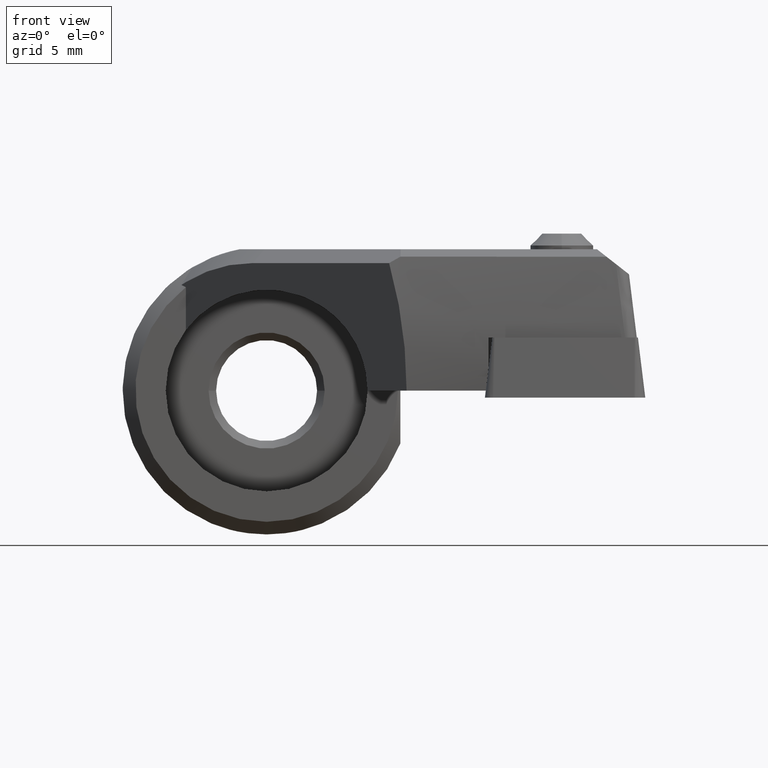
[diagram: clean part render]
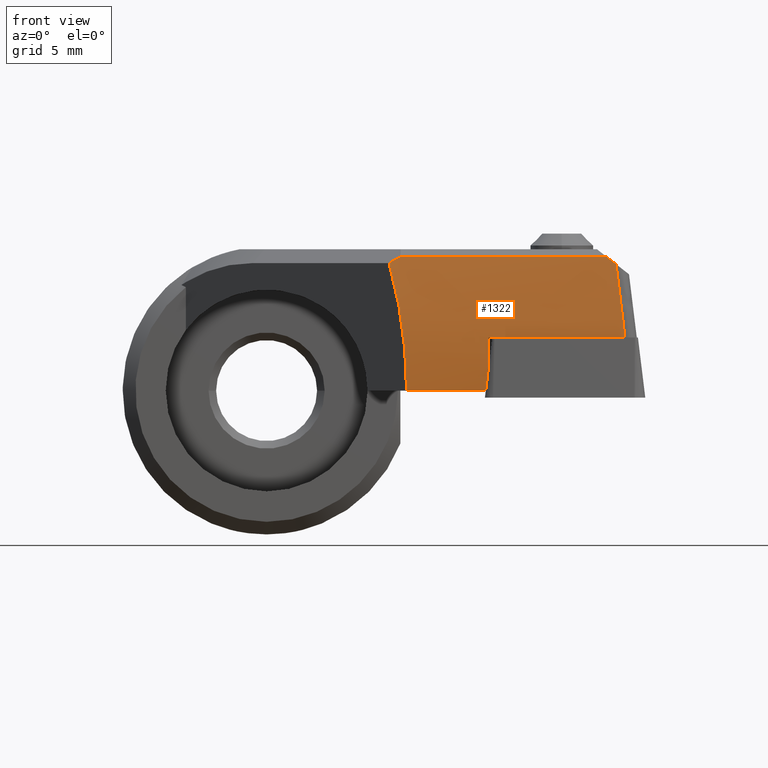
[diagram: same view with one face highlighted and labeled with its STEP entity id]
A machine part, front view. The second image highlights one B-rep face of the part: STEP entity #1322.
In plain terms, the highlighted conical surface has half-angle 10 deg.
Its self-contained STEP definition (entity closure, byte-faithful):
#620=EDGE_CURVE('NONE',#656,#698,#1763,.T.);
#656=VERTEX_POINT('NONE',#1801);
#696=EDGE_CURVE('NONE',#806,#656,#1844,.T.);
#698=VERTEX_POINT('NONE',#1846);
#750=EDGE_CURVE('NONE',#890,#1124,#1902,.F.);
#786=VERTEX_POINT('NONE',#1939);
#806=VERTEX_POINT('NONE',#1960);
#830=EDGE_CURVE('NONE',#698,#890,#1988,.F.);
#890=VERTEX_POINT('NONE',#2056);
#1012=VERTEX_POINT('NONE',#2196);
#1046=VERTEX_POINT('NONE',#2231);
#1124=VERTEX_POINT('NONE',#2318);
#1230=EDGE_CURVE('NONE',#1012,#806,#2435,.T.);
#1268=EDGE_CURVE('NONE',#786,#1012,#2479,.T.);
#1304=EDGE_CURVE('NONE',#1046,#1624,#2517,.T.);
#1322=ADVANCED_FACE('NONE',(#2537),#2538,.T.);
#1624=VERTEX_POINT('NONE',#2871);
#1668=EDGE_CURVE('NONE',#1046,#786,#2918,.T.);
#1690=EDGE_CURVE('NONE',#1624,#1124,#2941,.T.);
#1763=B_SPLINE_CURVE_WITH_KNOTS('',3,(#3023,#3024,#3025,#3026,#3027,#3028,#3029,#3030,#3031,#3032,#3033,#3034),.UNSPECIFIED.,.F.,.F.,(4,2,2,2,2,4),(-9.78587928076607,-8.71451590367417,-7.64335438587341,-5.50123658445705,-1.21867820815756,-0.0),.UNSPECIFIED.);
#1801=CARTESIAN_POINT('',(13.4710769397371,-15.1552312710952,5.29970917868589));
#1844=ELLIPSE('',#3140,43.3681870752418,26.0112476069064);
#1846=CARTESIAN_POINT('',(5.30483348837496,-13.6750876793138,5.30737830274481));
#1902=ELLIPSE('',#3233,27.3468470229419,19.0341598682726);
#1939=CARTESIAN_POINT('',(8.78444401779594,-14.8229285860232,2.09999999999999));
#1960=CARTESIAN_POINT('',(13.8455924612021,-15.2866610355903,5.00710560289485));
#1988=ELLIPSE('',#3370,42.911373078917,18.3650320950065);
#2056=CARTESIAN_POINT('',(4.85349083969277,-13.6534908396929,5.05112553989447));
#2196=CARTESIAN_POINT('',(14.1967215406076,-15.7809990806224,2.09999999999999));
#2231=CARTESIAN_POINT('',(8.78444401779594,-14.9003092707261,0.900000000000121));
#2318=CARTESIAN_POINT('',(5.5468006574716,-14.3468006574717,1.23606387923872E-015));
#2435=B_SPLINE_CURVE_WITH_KNOTS('',3,(#4469,#4470,#4471,#4472,#4473,#4474,#4475),.UNSPECIFIED.,.F.,.F.,(4,3,4),(0.0,0.83335209628488,1.0),.UNSPECIFIED.);
#2479=(B_SPLINE_CURVE(2,(#4530,#4531,#4532),.UNSPECIFIED.,.F.,.F.)B_SPLINE_CURVE_WITH_KNOTS((3,3),(1.31546737846065,6.8112370940866),.UNSPECIFIED.)RATIONAL_B_SPLINE_CURVE((1.00011915251355,1.00031952454388,1.0001144310414))BOUNDED_CURVE()REPRESENTATION_ITEM('')GEOMETRIC_REPRESENTATION_ITEM()CURVE());
#2517=ELLIPSE('',#4587,23.4598143108801,23.3043069477188);
#2537=FACE_OUTER_BOUND('',#4614,.T.);
#2538=CONICAL_SURFACE('',#4615,25.2952896591174,0.174532925199437);
#2871=CARTESIAN_POINT('',(8.68190197032446,-14.8996036061821,1.33226762955019E-015));
#2918=CIRCLE('',#5202,23.3176845358085);
#2941=LINE('',#5236,#5237);
#3023=CARTESIAN_POINT('',(13.5596428564691,-15.1712506069513,5.29965351986083));
#3024=CARTESIAN_POINT('',(13.2522088725556,-15.1156452251892,5.29984570459118));
#3025=CARTESIAN_POINT('',(12.9455531072492,-15.0601692872093,5.30004442277486));
#3026=CARTESIAN_POINT('',(12.331381821018,-14.9490382058228,5.30045896000161));
#3027=CARTESIAN_POINT('',(12.024299361683,-14.8934614002544,5.30067447997445));
#3028=CARTESIAN_POINT('',(11.1031981873349,-14.7267203378501,5.30134925154841));
#3029=CARTESIAN_POINT('',(10.4889415171668,-14.6154759049802,5.30183699115158));
#3030=CARTESIAN_POINT('',(8.64729400520403,-14.281784192749,5.30344137507724));
#3031=CARTESIAN_POINT('',(7.41806844227278,-14.0588429133266,5.30470167653562));
#3032=CARTESIAN_POINT('',(5.84100951235993,-13.7724886370193,5.30666356007647));
#3033=CARTESIAN_POINT('',(5.53738244006219,-13.7173421700916,5.30705897636259));
#3034=CARTESIAN_POINT('',(5.13770054469244,-13.6447219060113,5.30760597474021));
#3140=AXIS2_PLACEMENT_3D('',#5384,#5385,#5386);
#3233=AXIS2_PLACEMENT_3D('',#5442,#5443,#5444);
#3370=AXIS2_PLACEMENT_3D('',#5526,#5527,#5528);
#4469=CARTESIAN_POINT('',(14.1967215406076,-15.7809990806224,2.09999999999999));
#4470=CARTESIAN_POINT('',(14.0983071906151,-15.69282230454,2.91476557632636));
#4471=CARTESIAN_POINT('',(14.0004267892357,-15.5634493136465,3.72512482793417));
#4472=CARTESIAN_POINT('',(13.9035670698982,-15.3934764976652,4.52709323065743));
#4473=CARTESIAN_POINT('',(13.8841977429906,-15.3594865268016,4.6874652435862));
#4474=CARTESIAN_POINT('',(13.8648743783739,-15.323883933622,4.84745774060068));
#4475=CARTESIAN_POINT('',(13.8455924612021,-15.2866610355903,5.00710560289486));
#4530=CARTESIAN_POINT('',(8.78444401779563,-14.8229285860232,2.09999999999999));
#4531=CARTESIAN_POINT('',(11.4358895286179,-15.2923575835638,2.09999999999999));
#4532=CARTESIAN_POINT('',(14.1967215406073,-15.7809990806213,2.09999999999999));
#4587=AXIS2_PLACEMENT_3D('',#6208,#6209,#6210);
#4614=EDGE_LOOP('',(#6235,#6236,#6237,#6238,#6239,#6240,#6241,#6242,#6243));
#4615=AXIS2_PLACEMENT_3D('',#6244,#6245,#6246);
#5202=AXIS2_PLACEMENT_3D('',#6673,#6674,#6675);
#5236=CARTESIAN_POINT('',(20.0,-16.8952896591174,-7.23763568590435E-016));
#5237=VECTOR('',#6699,1.0);
#5384=CARTESIAN_POINT('',(27.9672003239699,8.40000000000001,-6.02590364342413));
#5385=DIRECTION('',(-0.61566147532566,2.21148031919487E-016,-0.788010753606721));
#5386=DIRECTION('',(-0.788010753606721,-3.23313168899714E-016,0.61566147532566));
#5442=CARTESIAN_POINT('',(-13.7903403165216,4.99034031652173,1.77635683940025E-015));
#5443=DIRECTION('',(-0.707106781186551,-0.707106781186544,8.65956056235497E-017));
#5444=DIRECTION('',(0.707106781186544,-0.707106781186551,2.24925707867416E-016));
#5526=CARTESIAN_POINT('',(-12.5213242480244,4.95088507889723,5.78429932160496));
#5527=DIRECTION('',(-0.455844251589159,-0.455844251589155,0.764468466704967));
#5528=DIRECTION('',(0.89005955884599,-0.23346076073414,0.391522738681059));
#6208=CARTESIAN_POINT('',(8.73525530552677,8.4,0.468276213184033));
#6209=DIRECTION('',(0.993571855676587,2.17134718791029E-016,-0.113203213767907));
#6210=DIRECTION('',(0.113203213767907,-1.41388178540865E-014,0.993571855676587));
#6235=ORIENTED_EDGE('',*,*,#1230,.T.);
#6236=ORIENTED_EDGE('',*,*,#696,.T.);
#6237=ORIENTED_EDGE('',*,*,#620,.T.);
#6238=ORIENTED_EDGE('',*,*,#830,.T.);
#6239=ORIENTED_EDGE('',*,*,#750,.T.);
#6240=ORIENTED_EDGE('',*,*,#1690,.F.);
#6241=ORIENTED_EDGE('',*,*,#1304,.F.);
#6242=ORIENTED_EDGE('',*,*,#1668,.T.);
#6243=ORIENTED_EDGE('',*,*,#1268,.T.);
#6244=CARTESIAN_POINT('',(20.0,8.40000000000001,-2.44929359829471E-015));
#6245=DIRECTION('',(1.0,1.37157826564089E-016,-1.22464679914735E-016));
#6246=DIRECTION('',(-1.37157826564089E-016,1.0,1.67969893279719E-032));
#6673=CARTESIAN_POINT('',(8.78444401779594,8.4,-1.07578412486829E-015));
#6674=DIRECTION('',(-1.0,2.11370119780085E-016,1.22464679914736E-016));
#6675=DIRECTION('',(2.11370119780085E-016,1.0,-2.58853740624076E-032));
#6699=DIRECTION('',(-0.984807753012207,0.173648177666934,1.33538133630325E-016));